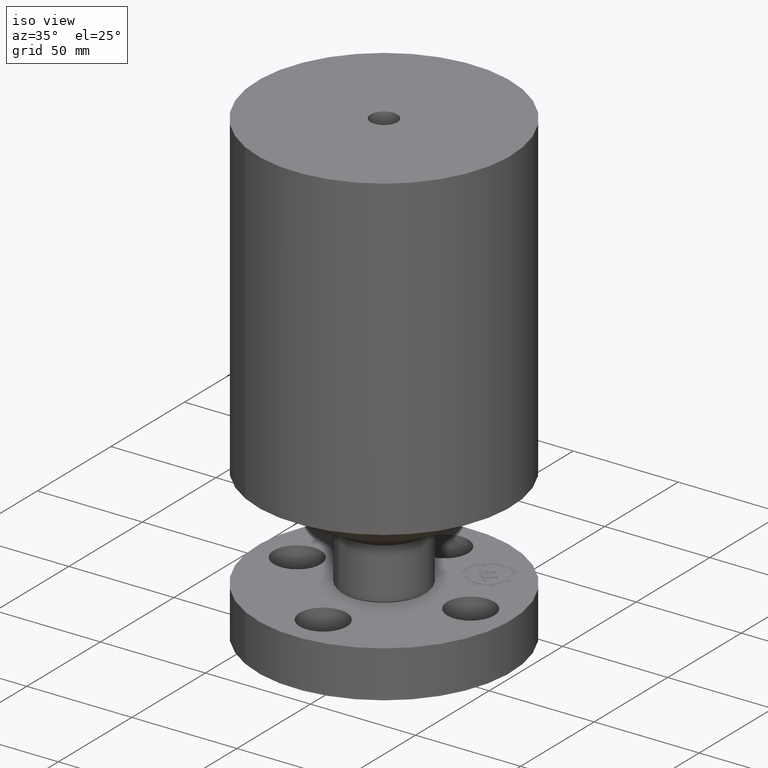
[diagram: clean part render]
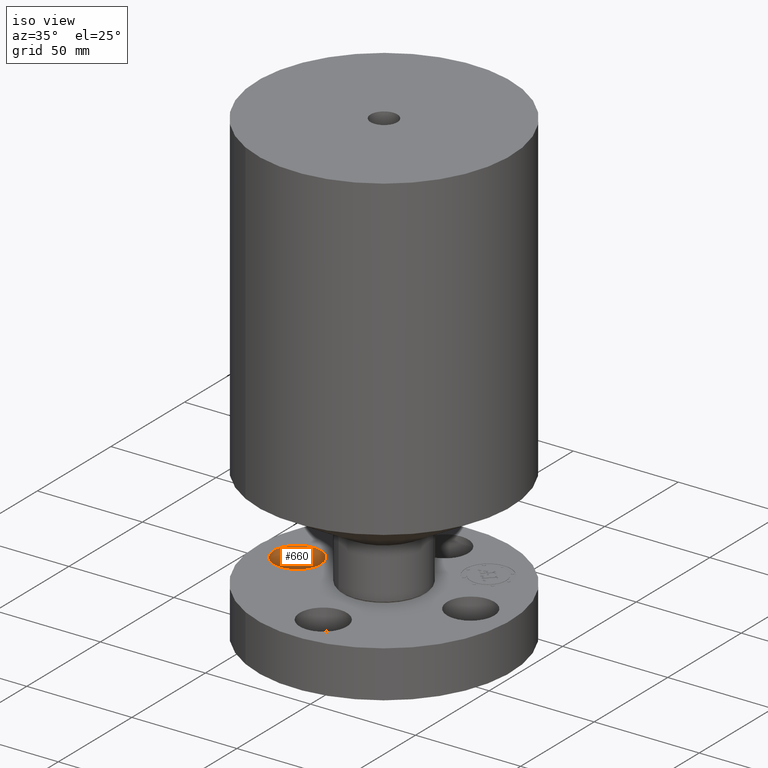
[diagram: same view with one face highlighted and labeled with its STEP entity id]
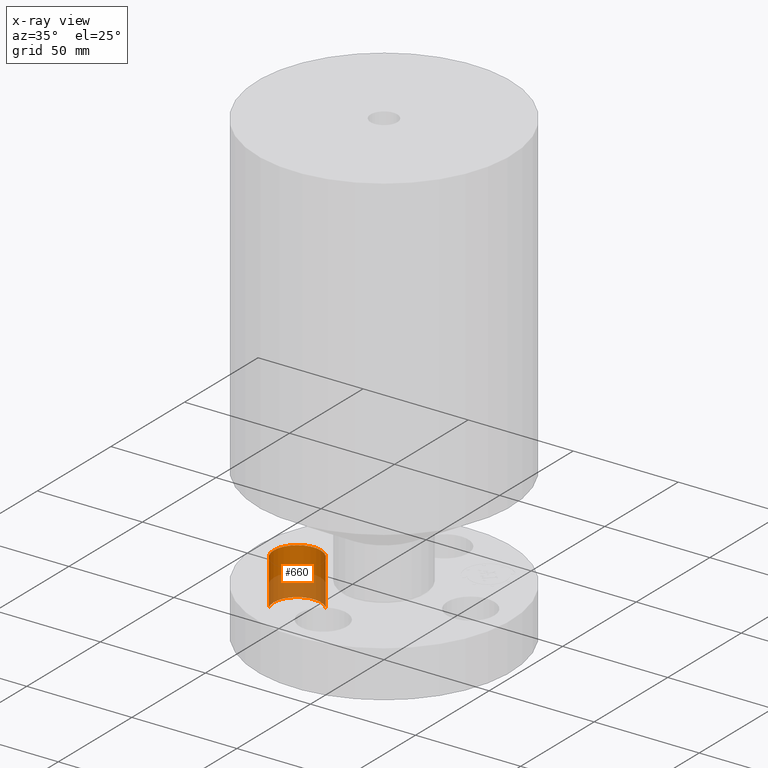
[diagram: x-ray of the same camera — body ghosted, the highlighted face saturated]
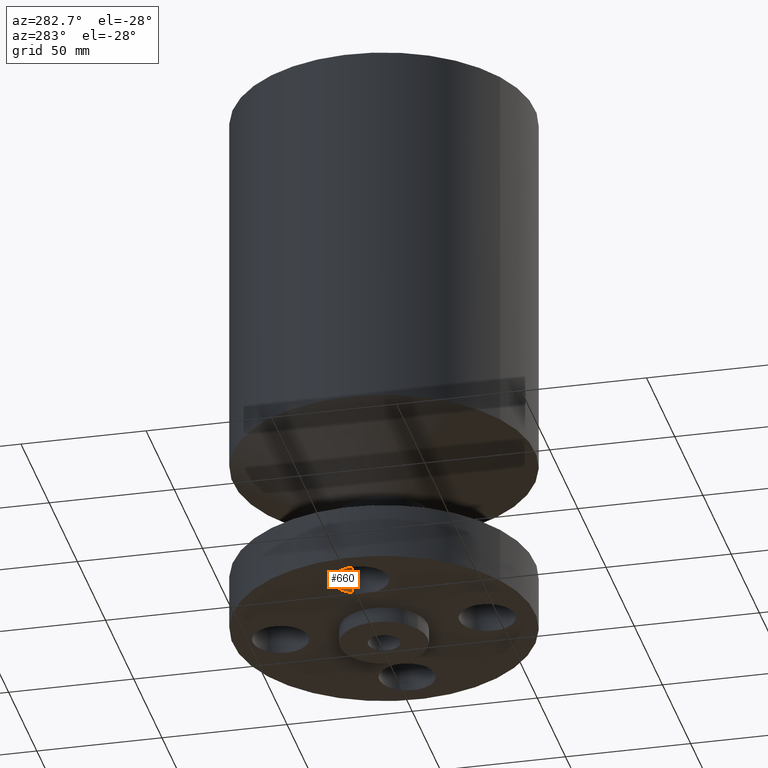
[diagram: same view with one face highlighted and labeled with its STEP entity id]
A machine part, iso view. The second image highlights one B-rep face of the part: STEP entity #660.
The next image is the same camera in x-ray: the body ghosted, the highlighted face saturated — about 48% of this face is hidden behind the body in this view.
A second angle (auxiliary view) of the same face is appended — the face is thin or edge-on in the first view.
In plain terms, the highlighted cylindrical surface (edge-blend (fillet) strip) has radius 11.176 mm, axis along (0, 0, 1).
Its self-contained STEP definition (entity closure, byte-faithful):
#145=AXIS2_PLACEMENT_3D('Circle Axis2P3D',#143,#144,$) ;
#633=AXIS2_PLACEMENT_3D('Cylinder Axis2P3D',#630,#631,#632) ;
#651=AXIS2_PLACEMENT_3D('Circle Axis2P3D',#649,#650,$) ;
#143=CARTESIAN_POINT('Axis2P3D Location',(-1.62500000001,-1.39870617276E-016,0.)) ;
#147=CARTESIAN_POINT('Vertex',(-2.01113632724,-0.210947236987,0.)) ;
#149=CARTESIAN_POINT('Vertex',(-1.23886367277,0.210947236987,0.)) ;
#630=CARTESIAN_POINT('Axis2P3D Location',(-1.62500000001,-1.99005104862E-016,0.00393700787402)) ;
#635=CARTESIAN_POINT('Line Origine',(-2.01113632724,-0.210947236987,0.440000000002)) ;
#639=CARTESIAN_POINT('Vertex',(-2.01113632724,-0.210947236987,0.880000000004)) ;
#642=CARTESIAN_POINT('Line Origine',(-1.23886367277,0.210947236987,0.440000000002)) ;
#646=CARTESIAN_POINT('Vertex',(-1.23886367277,0.210947236987,0.880000000004)) ;
#649=CARTESIAN_POINT('Axis2P3D Location',(-1.62500000001,-1.99005104862E-016,0.880000000004)) ;
#144=DIRECTION('Axis2P3D Direction',(0.,0.,-0.0393700787402)) ;
#631=DIRECTION('Axis2P3D Direction',(0.,0.,0.0393700787402)) ;
#632=DIRECTION('Axis2P3D XDirection',(-0.0345504945626,-0.0188750212049,0.)) ;
#636=DIRECTION('Vector Direction',(0.,0.,0.0393700787402)) ;
#643=DIRECTION('Vector Direction',(0.,0.,0.0393700787402)) ;
#650=DIRECTION('Axis2P3D Direction',(0.,0.,0.0393700787402)) ;
#637=VECTOR('Line Direction',#636,0.0393700787402) ;
#644=VECTOR('Line Direction',#643,0.0393700787402) ;
#655=ORIENTED_EDGE('',*,*,#641,.T.) ;
#656=ORIENTED_EDGE('',*,*,#151,.T.) ;
#657=ORIENTED_EDGE('',*,*,#648,.F.) ;
#658=ORIENTED_EDGE('',*,*,#653,.F.) ;
#660=ADVANCED_FACE('PartBody',(#659),#634,.F.) ;
#146=CIRCLE('generated circle',#145,0.440000000002) ;
#652=CIRCLE('generated circle',#651,0.440000000002) ;
#634=CYLINDRICAL_SURFACE('generated cylinder',#633,0.440000000002) ;
#151=EDGE_CURVE('',#148,#150,#146,.T.) ;
#641=EDGE_CURVE('',#640,#148,#638,.F.) ;
#648=EDGE_CURVE('',#647,#150,#645,.F.) ;
#653=EDGE_CURVE('',#640,#647,#652,.F.) ;
#654=EDGE_LOOP('',(#655,#656,#657,#658)) ;
#659=FACE_OUTER_BOUND('',#654,.T.) ;
#638=LINE('Line',#635,#637) ;
#645=LINE('Line',#642,#644) ;
#148=VERTEX_POINT('',#147) ;
#150=VERTEX_POINT('',#149) ;
#640=VERTEX_POINT('',#639) ;
#647=VERTEX_POINT('',#646) ;